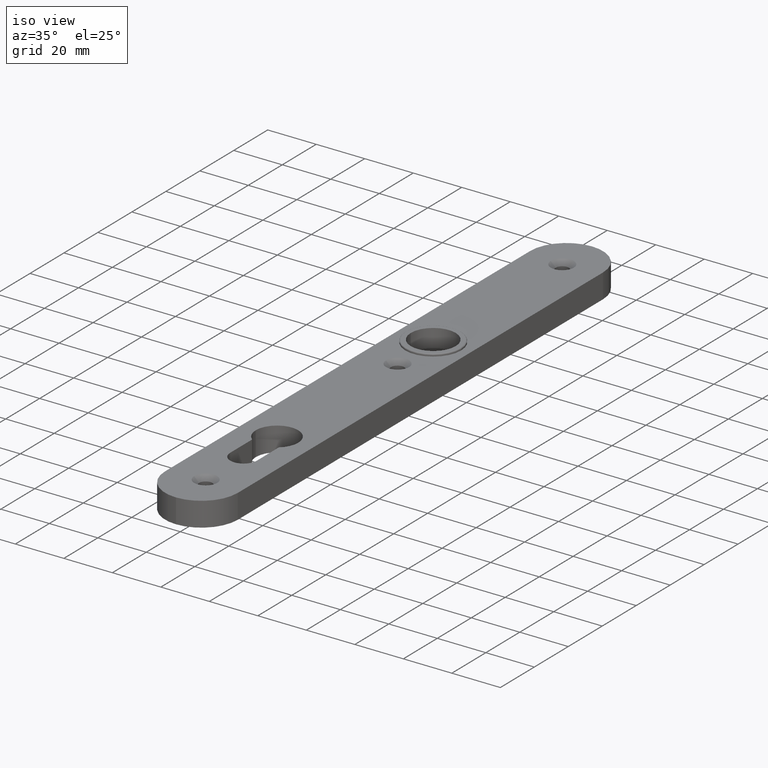
[diagram: clean part render]
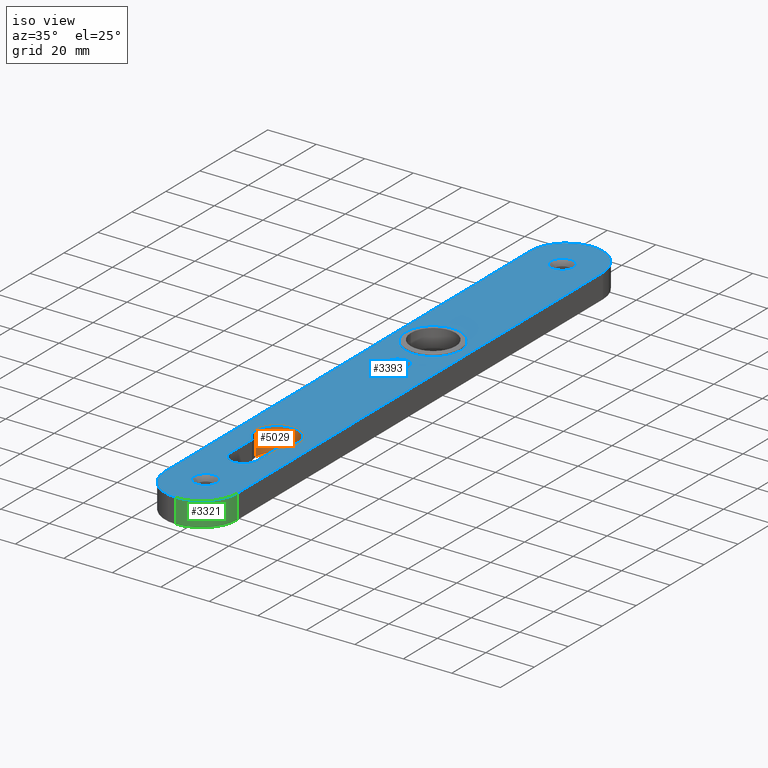
[diagram: same view with three faces highlighted in distinct colors, each labeled with its STEP entity id]
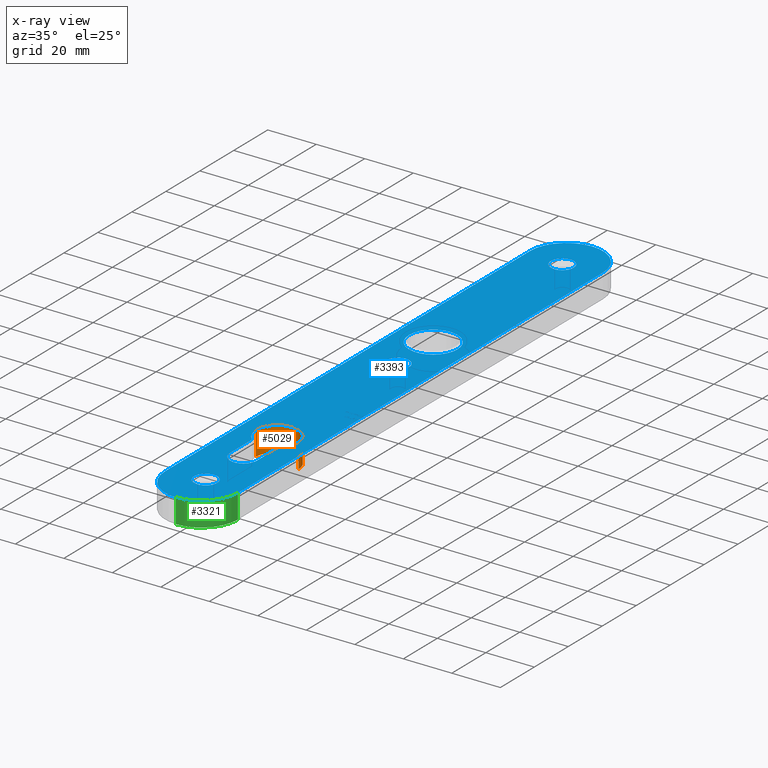
[diagram: x-ray of the same camera — body ghosted, the three highlighted faces saturated]
A machine part, iso view with three faces highlighted in distinct colors.
The next image is the same camera in x-ray (body ghosted, the three faces saturated) — at least one of them is partly hidden behind the body in this view.
Their STEP definitions:

[orange] entity #5029 — the highlighted cylindrical surface (edge-blend (fillet) strip) has radius 8.75 mm, axis along (0, 0, 1).
#145 = ORIENTED_EDGE ( 'NONE', *, *, #4929, .F. ) ;
#198 = DIRECTION ( 'NONE',  ( -0.000000000000000000, -0.000000000000000000, 1.000000000000000000 ) ) ;
#456 = VERTEX_POINT ( 'NONE', #3988 ) ;
#529 = DIRECTION ( 'NONE',  ( -0.000000000000000000, -0.000000000000000000, 1.000000000000000000 ) ) ;
#587 = AXIS2_PLACEMENT_3D ( 'NONE', #5684, #4788, #10988 ) ;
#1347 = AXIS2_PLACEMENT_3D ( 'NONE', #3996, #198, #4036 ) ;
#1412 = CARTESIAN_POINT ( 'NONE',  ( -8.750000000000003553, -62.99999999999998579, 0.000000000000000000 ) ) ;
#1709 = CARTESIAN_POINT ( 'NONE',  ( 8.750000000000003553, -62.99999999999998579, 0.000000000000000000 ) ) ;
#3014 = FACE_OUTER_BOUND ( 'NONE', #9847, .T. ) ;
#3130 = EDGE_CURVE ( 'NONE', #456, #5269, #4437, .T. ) ;
#3486 = ORIENTED_EDGE ( 'NONE', *, *, #9445, .T. ) ;
#3988 = CARTESIAN_POINT ( 'NONE',  ( 8.750000000000003553, -62.99999999999998579, 10.00000000000000000 ) ) ;
#3996 = CARTESIAN_POINT ( 'NONE',  ( 0.000000000000000000, -62.99999999999998579, 0.000000000000000000 ) ) ;
#4036 = DIRECTION ( 'NONE',  ( 1.000000000000000000, 0.000000000000000000, 0.000000000000000000 ) ) ;
#4437 = CIRCLE ( 'NONE', #587, 8.750000000000003553 ) ;
#4642 = DIRECTION ( 'NONE',  ( -0.000000000000000000, -0.000000000000000000, 1.000000000000000000 ) ) ;
#4788 = DIRECTION ( 'NONE',  ( 0.000000000000000000, 0.000000000000000000, 1.000000000000000000 ) ) ;
#4929 = EDGE_CURVE ( 'NONE', #5635, #7060, #6899, .T. ) ;
#5029 = ADVANCED_FACE ( 'NONE', ( #3014 ), #6621, .F. ) ;
#5269 = VERTEX_POINT ( 'NONE', #11277 ) ;
#5635 = VERTEX_POINT ( 'NONE', #1709 ) ;
#5684 = CARTESIAN_POINT ( 'NONE',  ( 0.000000000000000000, -62.99999999999998579, 10.00000000000000000 ) ) ;
#6345 = DIRECTION ( 'NONE',  ( 1.000000000000000000, 0.000000000000000000, 0.000000000000000000 ) ) ;
#6621 = CYLINDRICAL_SURFACE ( 'NONE', #1347, 8.750000000000003553 ) ;
#6899 = CIRCLE ( 'NONE', #10121, 8.750000000000003553 ) ;
#7060 = VERTEX_POINT ( 'NONE', #1412 ) ;
#7211 = DIRECTION ( 'NONE',  ( 0.000000000000000000, 0.000000000000000000, 1.000000000000000000 ) ) ;
#7399 = ORIENTED_EDGE ( 'NONE', *, *, #8873, .F. ) ;
#7568 = VECTOR ( 'NONE', #529, 1000.000000000000000 ) ;
#8873 = EDGE_CURVE ( 'NONE', #7060, #5269, #10868, .T. ) ;
#8892 = CARTESIAN_POINT ( 'NONE',  ( 0.000000000000000000, -62.99999999999998579, 0.000000000000000000 ) ) ;
#9445 = EDGE_CURVE ( 'NONE', #5635, #456, #11314, .T. ) ;
#9458 = CARTESIAN_POINT ( 'NONE',  ( 8.750000000000003553, -62.99999999999998579, 0.000000000000000000 ) ) ;
#9475 = VECTOR ( 'NONE', #4642, 1000.000000000000000 ) ;
#9847 = EDGE_LOOP ( 'NONE', ( #7399, #145, #3486, #10596 ) ) ;
#9952 = CARTESIAN_POINT ( 'NONE',  ( -8.750000000000003553, -62.99999999999998579, 0.000000000000000000 ) ) ;
#10121 = AXIS2_PLACEMENT_3D ( 'NONE', #8892, #7211, #6345 ) ;
#10596 = ORIENTED_EDGE ( 'NONE', *, *, #3130, .T. ) ;
#10868 = LINE ( 'NONE', #9952, #9475 ) ;
#10988 = DIRECTION ( 'NONE',  ( 1.000000000000000000, 0.000000000000000000, 0.000000000000000000 ) ) ;
#11277 = CARTESIAN_POINT ( 'NONE',  ( -8.750000000000003553, -62.99999999999998579, 10.00000000000000000 ) ) ;
#11314 = LINE ( 'NONE', #9458, #7568 ) ;

[blue] entity #3393 — the highlighted planar face has unit normal (0, 0, -1).
#28 = CIRCLE ( 'NONE', #8324, 8.750000000000003553 ) ;
#35 = CARTESIAN_POINT ( 'NONE',  ( -5.500000000000000000, -82.74999999999998579, 10.00000000000000000 ) ) ;
#60 = DIRECTION ( 'NONE',  ( -1.000000000000000000, 0.000000000000000000, 0.000000000000000000 ) ) ;
#136 = VERTEX_POINT ( 'NONE', #8651 ) ;
#190 = AXIS2_PLACEMENT_3D ( 'NONE', #4482, #5371, #60 ) ;
#248 = CARTESIAN_POINT ( 'NONE',  ( 0.000000000000000000, -104.9999999999999858, 10.00000000000000000 ) ) ;
#285 = EDGE_CURVE ( 'NONE', #3541, #136, #9870, .T. ) ;
#314 = DIRECTION ( 'NONE',  ( 1.000000000000000000, 0.000000000000000000, 0.000000000000000000 ) ) ;
#364 = CARTESIAN_POINT ( 'NONE',  ( -2.602085213965210642E-14, 122.5000000000000000, 10.00000000000000000 ) ) ;
#406 = ORIENTED_EDGE ( 'NONE', *, *, #7761, .F. ) ;
#456 = VERTEX_POINT ( 'NONE', #3988 ) ;
#587 = AXIS2_PLACEMENT_3D ( 'NONE', #5684, #4788, #10988 ) ;
#614 = EDGE_CURVE ( 'NONE', #5269, #7953, #28, .T. ) ;
#616 = CARTESIAN_POINT ( 'NONE',  ( 0.000000000000000000, 0.000000000000000000, 10.00000000000000000 ) ) ;
#659 = CARTESIAN_POINT ( 'NONE',  ( 10.00000000000000711, 29.00000000000001066, 10.00000000000000000 ) ) ;
#691 = ORIENTED_EDGE ( 'NONE', *, *, #891, .T. ) ;
#727 = AXIS2_PLACEMENT_3D ( 'NONE', #7099, #3476, #8781 ) ;
#731 = LINE ( 'NONE', #35, #3687 ) ;
#891 = EDGE_CURVE ( 'NONE', #6315, #10997, #7670, .T. ) ;
#908 = CARTESIAN_POINT ( 'NONE',  ( 4.750000000000059508, 105.0000000000000142, 10.00000000000000000 ) ) ;
#941 = FACE_BOUND ( 'NONE', #6569, .T. ) ;
#956 = CARTESIAN_POINT ( 'NONE',  ( -15.00000000000002487, 122.5000000000000000, 10.00000000000000000 ) ) ;
#964 = CIRCLE ( 'NONE', #6274, 4.750000000000031974 ) ;
#1011 = CARTESIAN_POINT ( 'NONE',  ( -4.750000000000031974, -104.9999999999999858, 10.00000000000000000 ) ) ;
#1018 = DIRECTION ( 'NONE',  ( -1.000000000000000000, 0.000000000000000000, 0.000000000000000000 ) ) ;
#1086 = CARTESIAN_POINT ( 'NONE',  ( 15.00000000000002487, 107.5000000000000000, 10.00000000000000000 ) ) ;
#1095 = CIRCLE ( 'NONE', #5295, 8.750000000000003553 ) ;
#1102 = DIRECTION ( 'NONE',  ( -1.000000000000000000, 0.000000000000000000, 0.000000000000000000 ) ) ;
#1184 = DIRECTION ( 'NONE',  ( 0.000000000000000000, 0.000000000000000000, 1.000000000000000000 ) ) ;
#1226 = EDGE_LOOP ( 'NONE', ( #9200, #3043 ) ) ;
#1263 = AXIS2_PLACEMENT_3D ( 'NONE', #616, #5891, #6586 ) ;
#1394 = CARTESIAN_POINT ( 'NONE',  ( -4.750000000000059508, 8.000000000000010658, 10.00000000000000000 ) ) ;
#1439 = ORIENTED_EDGE ( 'NONE', *, *, #7123, .T. ) ;
#1479 = CARTESIAN_POINT ( 'NONE',  ( -5.499999999999999112, -69.80532879440809779, 10.00000000000000000 ) ) ;
#1491 = EDGE_CURVE ( 'NONE', #7260, #5217, #4601, .T. ) ;
#1507 = EDGE_CURVE ( 'NONE', #7419, #6803, #6134, .T. ) ;
#1562 = AXIS2_PLACEMENT_3D ( 'NONE', #3681, #6360, #1018 ) ;
#1627 = CIRCLE ( 'NONE', #5547, 15.00000000000000000 ) ;
#1652 = CIRCLE ( 'NONE', #727, 15.00000000000000000 ) ;
#1655 = CARTESIAN_POINT ( 'NONE',  ( -4.750000000000059508, 105.0000000000000142, 10.00000000000000000 ) ) ;
#1848 = VERTEX_POINT ( 'NONE', #659 ) ;
#1856 = EDGE_LOOP ( 'NONE', ( #406, #11202, #5672, #2523, #10125, #3103 ) ) ;
#1926 = FACE_BOUND ( 'NONE', #5971, .T. ) ;
#1939 = EDGE_CURVE ( 'NONE', #6803, #7260, #1652, .T. ) ;
#2107 = DIRECTION ( 'NONE',  ( -1.000000000000000000, 0.000000000000000000, 0.000000000000000000 ) ) ;
#2109 = EDGE_CURVE ( 'NONE', #10997, #6315, #964, .T. ) ;
#2177 = CARTESIAN_POINT ( 'NONE',  ( 0.000000000000000000, -62.99999999999998579, 10.00000000000000000 ) ) ;
#2184 = FACE_BOUND ( 'NONE', #7891, .T. ) ;
#2213 = DIRECTION ( 'NONE',  ( 0.000000000000000000, 0.000000000000000000, 1.000000000000000000 ) ) ;
#2303 = EDGE_CURVE ( 'NONE', #136, #456, #1095, .T. ) ;
#2392 = AXIS2_PLACEMENT_3D ( 'NONE', #8670, #11300, #2495 ) ;
#2441 = EDGE_CURVE ( 'NONE', #1848, #4450, #7498, .T. ) ;
#2495 = DIRECTION ( 'NONE',  ( -1.000000000000000000, 0.000000000000000000, 0.000000000000000000 ) ) ;
#2508 = CARTESIAN_POINT ( 'NONE',  ( 0.000000000000000000, -82.74999999999998579, 10.00000000000000000 ) ) ;
#2523 = ORIENTED_EDGE ( 'NONE', *, *, #2303, .F. ) ;
#2524 = AXIS2_PLACEMENT_3D ( 'NONE', #7387, #5621, #1102 ) ;
#2709 = VECTOR ( 'NONE', #8053, 1000.000000000000000 ) ;
#2721 = CIRCLE ( 'NONE', #4260, 4.750000000000059508 ) ;
#2882 = DIRECTION ( 'NONE',  ( -2.010159371866587315E-16, 1.000000000000000000, -0.000000000000000000 ) ) ;
#2927 = EDGE_CURVE ( 'NONE', #10420, #7605, #3750, .T. ) ;
#2945 = CARTESIAN_POINT ( 'NONE',  ( -2.602085213965210642E-14, -107.5000000000000000, 10.00000000000000000 ) ) ;
#2991 = ORIENTED_EDGE ( 'NONE', *, *, #6936, .F. ) ;
#3043 = ORIENTED_EDGE ( 'NONE', *, *, #2927, .T. ) ;
#3103 = ORIENTED_EDGE ( 'NONE', *, *, #4205, .F. ) ;
#3130 = EDGE_CURVE ( 'NONE', #456, #5269, #4437, .T. ) ;
#3155 = FACE_BOUND ( 'NONE', #1856, .T. ) ;
#3209 = VERTEX_POINT ( 'NONE', #7915 ) ;
#3353 = ORIENTED_EDGE ( 'NONE', *, *, #1491, .T. ) ;
#3393 = ADVANCED_FACE ( 'NONE', ( #2184, #3155, #4279, #941, #10107, #1926 ), #8593, .F. ) ;
#3420 = DIRECTION ( 'NONE',  ( -0.000000000000000000, -0.000000000000000000, -1.000000000000000000 ) ) ;
#3476 = DIRECTION ( 'NONE',  ( 0.000000000000000000, 0.000000000000000000, 1.000000000000000000 ) ) ;
#3536 = DIRECTION ( 'NONE',  ( -1.000000000000000000, 0.000000000000000000, 0.000000000000000000 ) ) ;
#3541 = VERTEX_POINT ( 'NONE', #9661 ) ;
#3562 = CARTESIAN_POINT ( 'NONE',  ( 0.000000000000000000, -62.99999999999998579, 10.00000000000000000 ) ) ;
#3611 = DIRECTION ( 'NONE',  ( 1.000000000000000000, 0.000000000000000000, 0.000000000000000000 ) ) ;
#3681 = CARTESIAN_POINT ( 'NONE',  ( 0.000000000000000000, 105.0000000000000142, 10.00000000000000000 ) ) ;
#3687 = VECTOR ( 'NONE', #7996, 1000.000000000000000 ) ;
#3750 = CIRCLE ( 'NONE', #4412, 4.750000000000059508 ) ;
#3988 = CARTESIAN_POINT ( 'NONE',  ( 8.750000000000003553, -62.99999999999998579, 10.00000000000000000 ) ) ;
#4158 = ORIENTED_EDGE ( 'NONE', *, *, #1939, .T. ) ;
#4186 = CARTESIAN_POINT ( 'NONE',  ( -15.00000000000002487, -107.4999999999999858, 10.00000000000000000 ) ) ;
#4205 = EDGE_CURVE ( 'NONE', #11209, #3541, #6083, .T. ) ;
#4232 = EDGE_LOOP ( 'NONE', ( #9031, #8994, #7111, #4158, #3353, #1439 ) ) ;
#4260 = AXIS2_PLACEMENT_3D ( 'NONE', #9501, #3420, #6034 ) ;
#4279 = FACE_BOUND ( 'NONE', #1226, .T. ) ;
#4301 = DIRECTION ( 'NONE',  ( 0.000000000000000000, 0.000000000000000000, 1.000000000000000000 ) ) ;
#4307 = CARTESIAN_POINT ( 'NONE',  ( 0.000000000000000000, -104.9999999999999858, 10.00000000000000000 ) ) ;
#4362 = DIRECTION ( 'NONE',  ( 0.000000000000000000, 0.000000000000000000, 1.000000000000000000 ) ) ;
#4412 = AXIS2_PLACEMENT_3D ( 'NONE', #8224, #8954, #2107 ) ;
#4437 = CIRCLE ( 'NONE', #587, 8.750000000000003553 ) ;
#4450 = VERTEX_POINT ( 'NONE', #7907 ) ;
#4482 = CARTESIAN_POINT ( 'NONE',  ( 0.000000000000000000, 8.000000000000010658, 10.00000000000000000 ) ) ;
#4566 = EDGE_CURVE ( 'NONE', #7605, #10420, #5657, .T. ) ;
#4601 = CIRCLE ( 'NONE', #2524, 15.00000000000000000 ) ;
#4634 = CIRCLE ( 'NONE', #2392, 15.00000000000000000 ) ;
#4699 = CARTESIAN_POINT ( 'NONE',  ( 5.499999999999997335, -69.80532879440809779, 10.00000000000000000 ) ) ;
#4788 = DIRECTION ( 'NONE',  ( 0.000000000000000000, 0.000000000000000000, 1.000000000000000000 ) ) ;
#5111 = AXIS2_PLACEMENT_3D ( 'NONE', #4307, #6951, #3536 ) ;
#5118 = CIRCLE ( 'NONE', #190, 4.750000000000059508 ) ;
#5133 = VERTEX_POINT ( 'NONE', #4186 ) ;
#5217 = VERTEX_POINT ( 'NONE', #10383 ) ;
#5269 = VERTEX_POINT ( 'NONE', #11277 ) ;
#5295 = AXIS2_PLACEMENT_3D ( 'NONE', #2177, #2213, #9351 ) ;
#5371 = DIRECTION ( 'NONE',  ( -0.000000000000000000, -0.000000000000000000, -1.000000000000000000 ) ) ;
#5547 = AXIS2_PLACEMENT_3D ( 'NONE', #2945, #1184, #7456 ) ;
#5621 = DIRECTION ( 'NONE',  ( 0.000000000000000000, 0.000000000000000000, 1.000000000000000000 ) ) ;
#5636 = CIRCLE ( 'NONE', #6056, 10.00000000000000711 ) ;
#5657 = CIRCLE ( 'NONE', #1562, 4.750000000000059508 ) ;
#5672 = ORIENTED_EDGE ( 'NONE', *, *, #3130, .F. ) ;
#5684 = CARTESIAN_POINT ( 'NONE',  ( 0.000000000000000000, -62.99999999999998579, 10.00000000000000000 ) ) ;
#5756 = CARTESIAN_POINT ( 'NONE',  ( 0.000000000000000000, 29.00000000000001066, 10.00000000000000000 ) ) ;
#5891 = DIRECTION ( 'NONE',  ( -0.000000000000000000, 0.000000000000000000, -1.000000000000000000 ) ) ;
#5971 = EDGE_LOOP ( 'NONE', ( #2991, #10827 ) ) ;
#6034 = DIRECTION ( 'NONE',  ( -1.000000000000000000, 0.000000000000000000, 0.000000000000000000 ) ) ;
#6056 = AXIS2_PLACEMENT_3D ( 'NONE', #5756, #6576, #314 ) ;
#6083 = CIRCLE ( 'NONE', #11083, 5.500000000000000000 ) ;
#6134 = LINE ( 'NONE', #7275, #8352 ) ;
#6160 = CARTESIAN_POINT ( 'NONE',  ( 4.750000000000059508, 8.000000000000010658, 10.00000000000000000 ) ) ;
#6274 = AXIS2_PLACEMENT_3D ( 'NONE', #248, #6431, #6542 ) ;
#6306 = EDGE_CURVE ( 'NONE', #10981, #9438, #2721, .T. ) ;
#6315 = VERTEX_POINT ( 'NONE', #8656 ) ;
#6360 = DIRECTION ( 'NONE',  ( -0.000000000000000000, -0.000000000000000000, -1.000000000000000000 ) ) ;
#6431 = DIRECTION ( 'NONE',  ( -0.000000000000000000, -0.000000000000000000, -1.000000000000000000 ) ) ;
#6542 = DIRECTION ( 'NONE',  ( -1.000000000000000000, 0.000000000000000000, 0.000000000000000000 ) ) ;
#6569 = EDGE_LOOP ( 'NONE', ( #10776, #10840 ) ) ;
#6576 = DIRECTION ( 'NONE',  ( 0.000000000000000000, 0.000000000000000000, 1.000000000000000000 ) ) ;
#6586 = DIRECTION ( 'NONE',  ( -1.000000000000000000, 0.000000000000000000, 0.000000000000000000 ) ) ;
#6803 = VERTEX_POINT ( 'NONE', #1086 ) ;
#6936 = EDGE_CURVE ( 'NONE', #4450, #1848, #5636, .T. ) ;
#6951 = DIRECTION ( 'NONE',  ( -0.000000000000000000, -0.000000000000000000, -1.000000000000000000 ) ) ;
#7001 = CARTESIAN_POINT ( 'NONE',  ( 0.000000000000000000, 29.00000000000001066, 10.00000000000000000 ) ) ;
#7099 = CARTESIAN_POINT ( 'NONE',  ( 2.602085213965210642E-14, 107.5000000000000000, 10.00000000000000000 ) ) ;
#7111 = ORIENTED_EDGE ( 'NONE', *, *, #1507, .T. ) ;
#7123 = EDGE_CURVE ( 'NONE', #5217, #5133, #11291, .T. ) ;
#7260 = VERTEX_POINT ( 'NONE', #364 ) ;
#7275 = CARTESIAN_POINT ( 'NONE',  ( 15.00000000000002487, 122.5000000000000000, 10.00000000000000000 ) ) ;
#7387 = CARTESIAN_POINT ( 'NONE',  ( -2.602085213965210642E-14, 107.5000000000000000, 10.00000000000000000 ) ) ;
#7419 = VERTEX_POINT ( 'NONE', #10478 ) ;
#7456 = DIRECTION ( 'NONE',  ( -1.000000000000000000, 0.000000000000000000, 0.000000000000000000 ) ) ;
#7498 = CIRCLE ( 'NONE', #10935, 10.00000000000000711 ) ;
#7605 = VERTEX_POINT ( 'NONE', #908 ) ;
#7670 = CIRCLE ( 'NONE', #5111, 4.750000000000031974 ) ;
#7761 = EDGE_CURVE ( 'NONE', #7953, #11209, #731, .T. ) ;
#7817 = CARTESIAN_POINT ( 'NONE',  ( -5.500000000000000000, -82.74999999999998579, 10.00000000000000000 ) ) ;
#7891 = EDGE_LOOP ( 'NONE', ( #691, #8784 ) ) ;
#7907 = CARTESIAN_POINT ( 'NONE',  ( -10.00000000000000711, 29.00000000000001066, 10.00000000000000000 ) ) ;
#7915 = CARTESIAN_POINT ( 'NONE',  ( -2.602085213965210642E-14, -122.5000000000000000, 10.00000000000000000 ) ) ;
#7953 = VERTEX_POINT ( 'NONE', #1479 ) ;
#7996 = DIRECTION ( 'NONE',  ( -6.700531239555291460E-17, -1.000000000000000000, -0.000000000000000000 ) ) ;
#8053 = DIRECTION ( 'NONE',  ( 0.000000000000000000, -1.000000000000000000, 0.000000000000000000 ) ) ;
#8224 = CARTESIAN_POINT ( 'NONE',  ( 0.000000000000000000, 105.0000000000000142, 10.00000000000000000 ) ) ;
#8324 = AXIS2_PLACEMENT_3D ( 'NONE', #3562, #10652, #3611 ) ;
#8352 = VECTOR ( 'NONE', #10919, 1000.000000000000000 ) ;
#8593 = PLANE ( 'NONE',  #1263 ) ;
#8644 = EDGE_CURVE ( 'NONE', #3209, #7419, #4634, .T. ) ;
#8651 = CARTESIAN_POINT ( 'NONE',  ( 5.499999999999997335, -69.80532879440809779, 10.00000000000000000 ) ) ;
#8656 = CARTESIAN_POINT ( 'NONE',  ( 4.750000000000031974, -104.9999999999999858, 10.00000000000000000 ) ) ;
#8670 = CARTESIAN_POINT ( 'NONE',  ( 2.602085213965210642E-14, -107.4999999999999858, 10.00000000000000000 ) ) ;
#8718 = DIRECTION ( 'NONE',  ( 1.000000000000000000, 0.000000000000000000, 0.000000000000000000 ) ) ;
#8771 = DIRECTION ( 'NONE',  ( 1.000000000000000000, 0.000000000000000000, 0.000000000000000000 ) ) ;
#8781 = DIRECTION ( 'NONE',  ( -1.000000000000000000, 0.000000000000000000, 0.000000000000000000 ) ) ;
#8784 = ORIENTED_EDGE ( 'NONE', *, *, #2109, .T. ) ;
#8954 = DIRECTION ( 'NONE',  ( -0.000000000000000000, -0.000000000000000000, -1.000000000000000000 ) ) ;
#8994 = ORIENTED_EDGE ( 'NONE', *, *, #8644, .T. ) ;
#9031 = ORIENTED_EDGE ( 'NONE', *, *, #10479, .T. ) ;
#9037 = VECTOR ( 'NONE', #2882, 1000.000000000000000 ) ;
#9200 = ORIENTED_EDGE ( 'NONE', *, *, #4566, .T. ) ;
#9351 = DIRECTION ( 'NONE',  ( 1.000000000000000000, 0.000000000000000000, 0.000000000000000000 ) ) ;
#9438 = VERTEX_POINT ( 'NONE', #1394 ) ;
#9501 = CARTESIAN_POINT ( 'NONE',  ( 0.000000000000000000, 8.000000000000010658, 10.00000000000000000 ) ) ;
#9569 = EDGE_CURVE ( 'NONE', #9438, #10981, #5118, .T. ) ;
#9661 = CARTESIAN_POINT ( 'NONE',  ( 5.500000000000000000, -82.74999999999998579, 10.00000000000000000 ) ) ;
#9870 = LINE ( 'NONE', #4699, #9037 ) ;
#10107 = FACE_OUTER_BOUND ( 'NONE', #4232, .T. ) ;
#10125 = ORIENTED_EDGE ( 'NONE', *, *, #285, .F. ) ;
#10383 = CARTESIAN_POINT ( 'NONE',  ( -15.00000000000002487, 107.5000000000000000, 10.00000000000000000 ) ) ;
#10420 = VERTEX_POINT ( 'NONE', #1655 ) ;
#10478 = CARTESIAN_POINT ( 'NONE',  ( 15.00000000000002487, -107.4999999999999858, 10.00000000000000000 ) ) ;
#10479 = EDGE_CURVE ( 'NONE', #5133, #3209, #1627, .T. ) ;
#10652 = DIRECTION ( 'NONE',  ( 0.000000000000000000, 0.000000000000000000, 1.000000000000000000 ) ) ;
#10776 = ORIENTED_EDGE ( 'NONE', *, *, #6306, .T. ) ;
#10827 = ORIENTED_EDGE ( 'NONE', *, *, #2441, .F. ) ;
#10840 = ORIENTED_EDGE ( 'NONE', *, *, #9569, .T. ) ;
#10919 = DIRECTION ( 'NONE',  ( -0.000000000000000000, 1.000000000000000000, -0.000000000000000000 ) ) ;
#10935 = AXIS2_PLACEMENT_3D ( 'NONE', #7001, #4362, #8771 ) ;
#10981 = VERTEX_POINT ( 'NONE', #6160 ) ;
#10988 = DIRECTION ( 'NONE',  ( 1.000000000000000000, 0.000000000000000000, 0.000000000000000000 ) ) ;
#10997 = VERTEX_POINT ( 'NONE', #1011 ) ;
#11083 = AXIS2_PLACEMENT_3D ( 'NONE', #2508, #4301, #8718 ) ;
#11202 = ORIENTED_EDGE ( 'NONE', *, *, #614, .F. ) ;
#11209 = VERTEX_POINT ( 'NONE', #7817 ) ;
#11277 = CARTESIAN_POINT ( 'NONE',  ( -8.750000000000003553, -62.99999999999998579, 10.00000000000000000 ) ) ;
#11291 = LINE ( 'NONE', #956, #2709 ) ;
#11300 = DIRECTION ( 'NONE',  ( 0.000000000000000000, 0.000000000000000000, 1.000000000000000000 ) ) ;

[green] entity #3321 — the highlighted cylindrical surface (partial cylindrical patch) has radius 15 mm, axis along (0, 0, -1).
#51 = EDGE_LOOP ( 'NONE', ( #1177, #5378, #1849, #5602 ) ) ;
#108 = CARTESIAN_POINT ( 'NONE',  ( -2.602085213965210642E-14, -122.5000000000000000, 10.00000000000000000 ) ) ;
#443 = LINE ( 'NONE', #5662, #9070 ) ;
#656 = AXIS2_PLACEMENT_3D ( 'NONE', #3308, #5959, #9471 ) ;
#944 = AXIS2_PLACEMENT_3D ( 'NONE', #9193, #10892, #3776 ) ;
#1177 = ORIENTED_EDGE ( 'NONE', *, *, #8644, .F. ) ;
#1179 = EDGE_CURVE ( 'NONE', #5733, #5021, #1256, .T. ) ;
#1256 = CIRCLE ( 'NONE', #944, 15.00000000000000000 ) ;
#1788 = CARTESIAN_POINT ( 'NONE',  ( -2.602085213965210642E-14, -122.5000000000000000, 0.000000000000000000 ) ) ;
#1849 = ORIENTED_EDGE ( 'NONE', *, *, #1179, .F. ) ;
#2392 = AXIS2_PLACEMENT_3D ( 'NONE', #8670, #11300, #2495 ) ;
#2495 = DIRECTION ( 'NONE',  ( -1.000000000000000000, 0.000000000000000000, 0.000000000000000000 ) ) ;
#3209 = VERTEX_POINT ( 'NONE', #7915 ) ;
#3308 = CARTESIAN_POINT ( 'NONE',  ( 2.602085213965210642E-14, -107.4999999999999858, 10.00000000000000000 ) ) ;
#3321 = ADVANCED_FACE ( 'NONE', ( #4013 ), #7237, .T. ) ;
#3776 = DIRECTION ( 'NONE',  ( -1.000000000000000000, 0.000000000000000000, 0.000000000000000000 ) ) ;
#4013 = FACE_OUTER_BOUND ( 'NONE', #51, .T. ) ;
#4462 = EDGE_CURVE ( 'NONE', #3209, #5021, #9519, .T. ) ;
#4634 = CIRCLE ( 'NONE', #2392, 15.00000000000000000 ) ;
#5021 = VERTEX_POINT ( 'NONE', #1788 ) ;
#5378 = ORIENTED_EDGE ( 'NONE', *, *, #4462, .T. ) ;
#5527 = VECTOR ( 'NONE', #8107, 1000.000000000000000 ) ;
#5602 = ORIENTED_EDGE ( 'NONE', *, *, #8496, .F. ) ;
#5662 = CARTESIAN_POINT ( 'NONE',  ( 15.00000000000002487, -107.4999999999999858, 10.00000000000000000 ) ) ;
#5733 = VERTEX_POINT ( 'NONE', #8100 ) ;
#5959 = DIRECTION ( 'NONE',  ( 0.000000000000000000, 0.000000000000000000, -1.000000000000000000 ) ) ;
#7237 = CYLINDRICAL_SURFACE ( 'NONE', #656, 15.00000000000000000 ) ;
#7419 = VERTEX_POINT ( 'NONE', #10478 ) ;
#7915 = CARTESIAN_POINT ( 'NONE',  ( -2.602085213965210642E-14, -122.5000000000000000, 10.00000000000000000 ) ) ;
#8100 = CARTESIAN_POINT ( 'NONE',  ( 15.00000000000002487, -107.4999999999999858, 0.000000000000000000 ) ) ;
#8107 = DIRECTION ( 'NONE',  ( 0.000000000000000000, -0.000000000000000000, -1.000000000000000000 ) ) ;
#8496 = EDGE_CURVE ( 'NONE', #7419, #5733, #443, .T. ) ;
#8644 = EDGE_CURVE ( 'NONE', #3209, #7419, #4634, .T. ) ;
#8670 = CARTESIAN_POINT ( 'NONE',  ( 2.602085213965210642E-14, -107.4999999999999858, 10.00000000000000000 ) ) ;
#9070 = VECTOR ( 'NONE', #9145, 1000.000000000000000 ) ;
#9145 = DIRECTION ( 'NONE',  ( 0.000000000000000000, 0.000000000000000000, -1.000000000000000000 ) ) ;
#9193 = CARTESIAN_POINT ( 'NONE',  ( 2.602085213965210642E-14, -107.4999999999999858, 0.000000000000000000 ) ) ;
#9471 = DIRECTION ( 'NONE',  ( -1.000000000000000000, 0.000000000000000000, 0.000000000000000000 ) ) ;
#9519 = LINE ( 'NONE', #108, #5527 ) ;
#10478 = CARTESIAN_POINT ( 'NONE',  ( 15.00000000000002487, -107.4999999999999858, 10.00000000000000000 ) ) ;
#10892 = DIRECTION ( 'NONE',  ( -0.000000000000000000, -0.000000000000000000, -1.000000000000000000 ) ) ;
#11300 = DIRECTION ( 'NONE',  ( 0.000000000000000000, 0.000000000000000000, 1.000000000000000000 ) ) ;